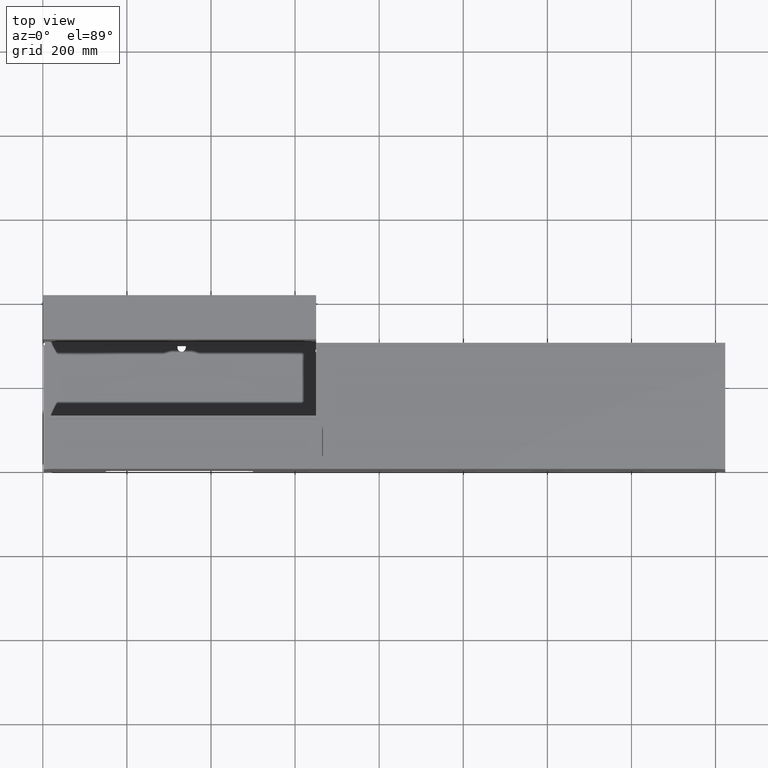
[diagram: clean part render]
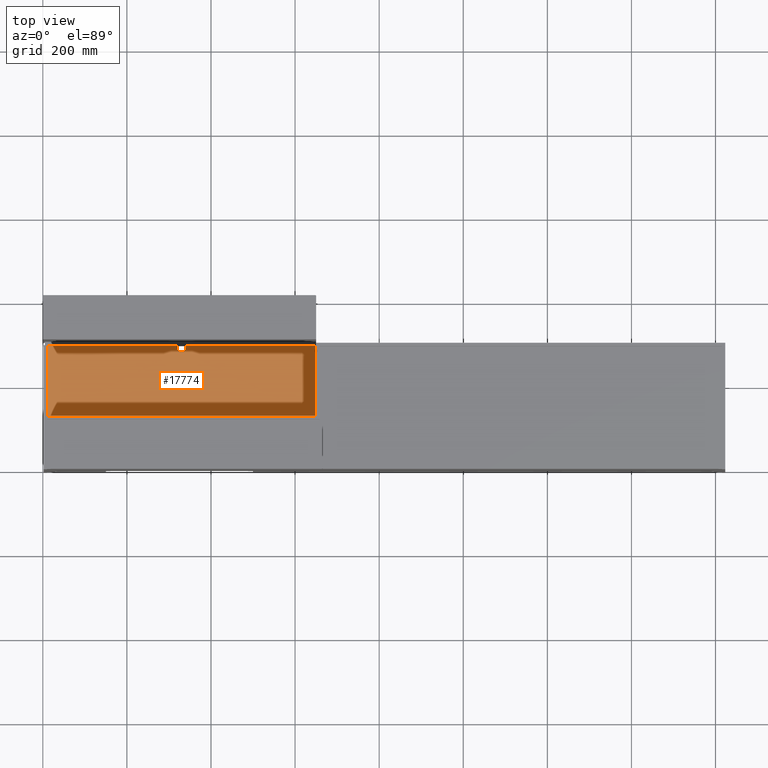
[diagram: same view with one face highlighted and labeled with its STEP entity id]
A machine part, top view. The second image highlights one B-rep face of the part: STEP entity #17774.
In plain terms, the highlighted planar face has unit normal (0, 0, 1).
Its self-contained STEP definition (entity closure, byte-faithful):
#892 = CARTESIAN_POINT ( 'NONE',  ( 11.00000000000001066, 299.0000000000000000, -319.9999999999999432 ) ) ;
#1104 = EDGE_CURVE ( 'NONE', #16006, #6185, #11611, .T. ) ;
#1188 = VECTOR ( 'NONE', #13255, 1000.000000000000000 ) ;
#1296 = ORIENTED_EDGE ( 'NONE', *, *, #13921, .F. ) ;
#1491 = LINE ( 'NONE', #7355, #1188 ) ;
#1619 = VECTOR ( 'NONE', #10995, 1000.000000000000000 ) ;
#2152 = ORIENTED_EDGE ( 'NONE', *, *, #13248, .F. ) ;
#2679 = CARTESIAN_POINT ( 'NONE',  ( 11.00000000000001066, 127.0000000000000000, -319.9999999999999432 ) ) ;
#3131 = LINE ( 'NONE', #9014, #7278 ) ;
#3976 = VECTOR ( 'NONE', #12446, 1000.000000000000000 ) ;
#4139 = DIRECTION ( 'NONE',  ( 0.0000000000000000000, 0.0000000000000000000, 1.000000000000000000 ) ) ;
#4148 = CARTESIAN_POINT ( 'NONE',  ( 648.9999999999998863, 126.9999999999999147, -319.9999999999999432 ) ) ;
#4293 = ORIENTED_EDGE ( 'NONE', *, *, #9204, .F. ) ;
#4317 = CIRCLE ( 'NONE', #15151, 10.00000000000006395 ) ;
#4483 = VECTOR ( 'NONE', #10527, 1000.000000000000000 ) ;
#4645 = CARTESIAN_POINT ( 'NONE',  ( 340.0000000000000000, 299.0000000000000000, -319.9999999999999432 ) ) ;
#5153 = VERTEX_POINT ( 'NONE', #7257 ) ;
#5294 = ORIENTED_EDGE ( 'NONE', *, *, #11212, .F. ) ;
#5408 = DIRECTION ( 'NONE',  ( 1.000000000000000000, 0.0000000000000000000, 0.0000000000000000000 ) ) ;
#5521 = VERTEX_POINT ( 'NONE', #4148 ) ;
#5590 = FACE_OUTER_BOUND ( 'NONE', #16302, .T. ) ;
#6017 = ORIENTED_EDGE ( 'NONE', *, *, #6396, .F. ) ;
#6185 = VERTEX_POINT ( 'NONE', #16184 ) ;
#6396 = EDGE_CURVE ( 'NONE', #5153, #7138, #14115, .T. ) ;
#6564 = CARTESIAN_POINT ( 'NONE',  ( 11.00000000000001066, 299.0000000000000000, -319.9999999999999432 ) ) ;
#6754 = DIRECTION ( 'NONE',  ( 1.000000000000000000, -8.700807403018469213E-17, 0.0000000000000000000 ) ) ;
#7138 = VERTEX_POINT ( 'NONE', #18271 ) ;
#7257 = CARTESIAN_POINT ( 'NONE',  ( 340.0000000000000000, 298.9999999999999432, -319.9999999999999432 ) ) ;
#7278 = VECTOR ( 'NONE', #14941, 1000.000000000000000 ) ;
#7355 = CARTESIAN_POINT ( 'NONE',  ( 319.9999999999998863, 299.0000000000000000, -319.9999999999999432 ) ) ;
#7567 = CARTESIAN_POINT ( 'NONE',  ( 340.0000000000000000, 294.0000000000000000, -319.9999999999999432 ) ) ;
#8541 = DIRECTION ( 'NONE',  ( -1.000000000000000000, 1.305121110452770259E-16, -0.0000000000000000000 ) ) ;
#8730 = ORIENTED_EDGE ( 'NONE', *, *, #16910, .F. ) ;
#9014 = CARTESIAN_POINT ( 'NONE',  ( 648.9999999999998863, 298.9999999999999432, -319.9999999999999432 ) ) ;
#9204 = EDGE_CURVE ( 'NONE', #13439, #5153, #17920, .T. ) ;
#10022 = DIRECTION ( 'NONE',  ( 1.000000000000000000, 0.0000000000000000000, -0.0000000000000000000 ) ) ;
#10527 = DIRECTION ( 'NONE',  ( -0.0000000000000000000, 1.000000000000000000, -0.0000000000000000000 ) ) ;
#10995 = DIRECTION ( 'NONE',  ( 1.916264304858100998E-16, 1.000000000000000000, -0.0000000000000000000 ) ) ;
#11183 = CARTESIAN_POINT ( 'NONE',  ( 11.00000000000001066, 299.0000000000000000, -319.9999999999999432 ) ) ;
#11212 = EDGE_CURVE ( 'NONE', #7138, #5521, #3131, .T. ) ;
#11312 = VERTEX_POINT ( 'NONE', #15239 ) ;
#11476 = PLANE ( 'NONE',  #16369 ) ;
#11580 = ORIENTED_EDGE ( 'NONE', *, *, #18915, .F. ) ;
#11611 = LINE ( 'NONE', #11183, #1619 ) ;
#12446 = DIRECTION ( 'NONE',  ( 1.000000000000000000, -8.700807403018469213E-17, 0.0000000000000000000 ) ) ;
#12723 = CARTESIAN_POINT ( 'NONE',  ( 329.9999999999999432, 294.0000000000000000, -319.9999999999999432 ) ) ;
#13107 = CARTESIAN_POINT ( 'NONE',  ( 11.00000000000001066, 127.0000000000000000, -319.9999999999999432 ) ) ;
#13248 = EDGE_CURVE ( 'NONE', #5521, #16006, #15938, .T. ) ;
#13255 = DIRECTION ( 'NONE',  ( 0.0000000000000000000, -1.000000000000000000, 0.0000000000000000000 ) ) ;
#13439 = VERTEX_POINT ( 'NONE', #7567 ) ;
#13496 = VECTOR ( 'NONE', #8541, 1000.000000000000000 ) ;
#13921 = EDGE_CURVE ( 'NONE', #11312, #14772, #1491, .T. ) ;
#14031 = ORIENTED_EDGE ( 'NONE', *, *, #1104, .F. ) ;
#14115 = LINE ( 'NONE', #892, #18084 ) ;
#14241 = CARTESIAN_POINT ( 'NONE',  ( 319.9999999999998863, 294.0000000000000000, -319.9999999999999432 ) ) ;
#14772 = VERTEX_POINT ( 'NONE', #14241 ) ;
#14941 = DIRECTION ( 'NONE',  ( 0.0000000000000000000, -1.000000000000000000, 0.0000000000000000000 ) ) ;
#15151 = AXIS2_PLACEMENT_3D ( 'NONE', #12723, #18666, #5408 ) ;
#15239 = CARTESIAN_POINT ( 'NONE',  ( 319.9999999999998863, 299.0000000000000000, -319.9999999999999432 ) ) ;
#15401 = LINE ( 'NONE', #6564, #3976 ) ;
#15938 = LINE ( 'NONE', #2679, #13496 ) ;
#16006 = VERTEX_POINT ( 'NONE', #13107 ) ;
#16184 = CARTESIAN_POINT ( 'NONE',  ( 11.00000000000001066, 299.0000000000000000, -319.9999999999999432 ) ) ;
#16302 = EDGE_LOOP ( 'NONE', ( #4293, #11580, #1296, #8730, #14031, #2152, #5294, #6017 ) ) ;
#16369 = AXIS2_PLACEMENT_3D ( 'NONE', #17406, #4139, #10022 ) ;
#16910 = EDGE_CURVE ( 'NONE', #6185, #11312, #15401, .T. ) ;
#17406 = CARTESIAN_POINT ( 'NONE',  ( 0.0000000000000000000, 0.0000000000000000000, -319.9999999999999432 ) ) ;
#17774 = ADVANCED_FACE ( 'NONE', ( #5590 ), #11476, .T. ) ;
#17920 = LINE ( 'NONE', #4645, #4483 ) ;
#18084 = VECTOR ( 'NONE', #6754, 1000.000000000000000 ) ;
#18271 = CARTESIAN_POINT ( 'NONE',  ( 648.9999999999998863, 298.9999999999999432, -319.9999999999999432 ) ) ;
#18666 = DIRECTION ( 'NONE',  ( 0.0000000000000000000, 0.0000000000000000000, 1.000000000000000000 ) ) ;
#18915 = EDGE_CURVE ( 'NONE', #14772, #13439, #4317, .T. ) ;